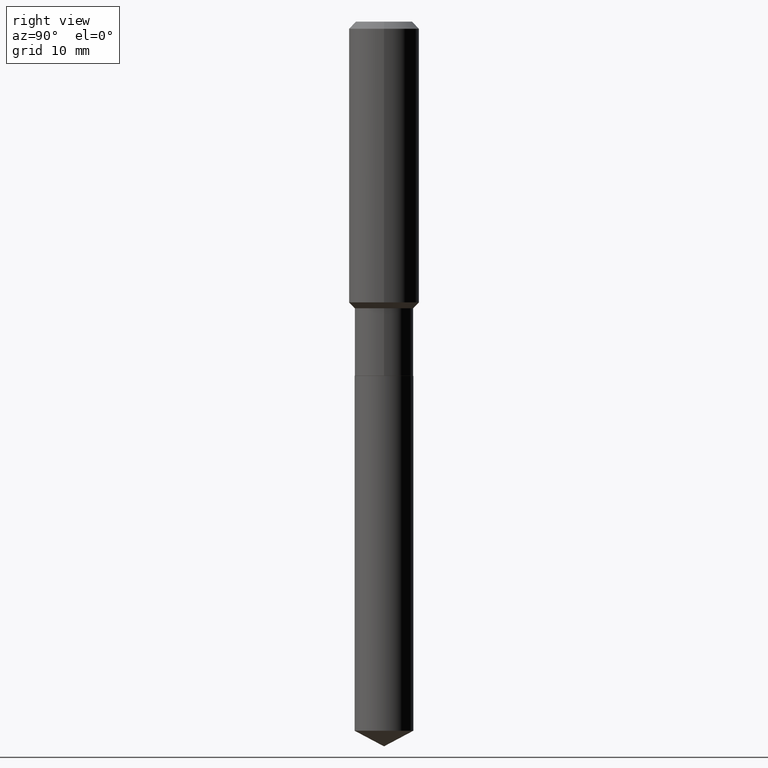
[diagram: clean part render]
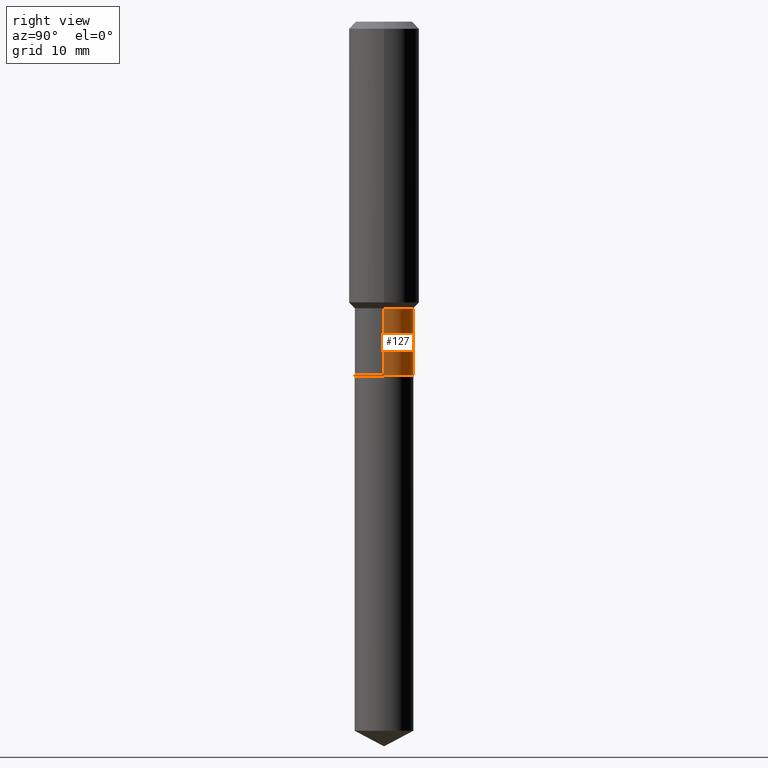
[diagram: same view with one face highlighted and labeled with its STEP entity id]
A machine part, right view. The second image highlights one B-rep face of the part: STEP entity #127.
In plain terms, the highlighted cylindrical surface (edge-blend (fillet) strip) has radius 4.1669 mm, axis along (-0, 0, 1).
Its self-contained STEP definition (entity closure, byte-faithful):
#13 = VERTEX_POINT ( 'NONE', #390 ) ;
#19 = VERTEX_POINT ( 'NONE', #200 ) ;
#26 = AXIS2_PLACEMENT_3D ( 'NONE', #393, #231, #37 ) ;
#31 = DIRECTION ( 'NONE',  ( 1.000000000000000000, -6.982962677686269077E-15, 0.000000000000000000 ) ) ;
#37 = DIRECTION ( 'NONE',  ( 1.000000000000000000, -6.982962677686266711E-15, 4.876176775795935232E-29 ) ) ;
#42 = EDGE_CURVE ( 'NONE', #46, #13, #408, .T. ) ;
#46 = VERTEX_POINT ( 'NONE', #120 ) ;
#77 = CIRCLE ( 'NONE', #205, 0.1640500000000000291 ) ;
#85 = CYLINDRICAL_SURFACE ( 'NONE', #26, 0.1640500000000000014 ) ;
#113 = ORIENTED_EDGE ( 'NONE', *, *, #234, .T. ) ;
#120 = CARTESIAN_POINT ( 'NONE',  ( 0.1640499999999999459, -6.745192798511067391E-15, -1.603799999999999670 ) ) ;
#127 = ADVANCED_FACE ( 'NONE', ( #434 ), #85, .T. ) ;
#134 = VECTOR ( 'NONE', #291, 39.37007874015748143 ) ;
#148 = VECTOR ( 'NONE', #417, 39.37007874015748143 ) ;
#173 = CARTESIAN_POINT ( 'NONE',  ( -0.1640500000000000014, 1.165645358014444365E-15, -8.069513015563172164E-30 ) ) ;
#188 = ORIENTED_EDGE ( 'NONE', *, *, #319, .F. ) ;
#200 = CARTESIAN_POINT ( 'NONE',  ( 0.1640500000000000291, -8.060782966987165334E-15, -1.980599999999999694 ) ) ;
#204 = ORIENTED_EDGE ( 'NONE', *, *, #413, .T. ) ;
#205 = AXIS2_PLACEMENT_3D ( 'NONE', #342, #485, #31 ) ;
#231 = DIRECTION ( 'NONE',  ( -2.445468806185136597E-29, 3.491481338843145583E-15, 1.000000000000000000 ) ) ;
#233 = EDGE_LOOP ( 'NONE', ( #204, #113, #399, #188 ) ) ;
#234 = EDGE_CURVE ( 'NONE', #389, #13, #288, .T. ) ;
#288 = LINE ( 'NONE', #173, #134 ) ;
#291 = DIRECTION ( 'NONE',  ( -2.445468806185136877E-29, 3.491481338843145188E-15, 1.000000000000000000 ) ) ;
#319 = EDGE_CURVE ( 'NONE', #19, #46, #453, .T. ) ;
#342 = CARTESIAN_POINT ( 'NONE',  ( 4.843495517530280568E-29, -6.915227939712732882E-15, -1.980599999999999694 ) ) ;
#344 = AXIS2_PLACEMENT_3D ( 'NONE', #422, #355, #384 ) ;
#355 = DIRECTION ( 'NONE',  ( -2.445468806185136597E-29, 3.491481338843145583E-15, 1.000000000000000000 ) ) ;
#384 = DIRECTION ( 'NONE',  ( 1.000000000000000000, -6.982962677686266711E-15, 0.000000000000000000 ) ) ;
#389 = VERTEX_POINT ( 'NONE', #415 ) ;
#390 = CARTESIAN_POINT ( 'NONE',  ( -0.1640499999999999459, -5.091787497460239743E-15, -1.603799999999999670 ) ) ;
#393 = CARTESIAN_POINT ( 'NONE',  ( 0.000000000000000000, 0.000000000000000000, 0.000000000000000000 ) ) ;
#399 = ORIENTED_EDGE ( 'NONE', *, *, #42, .F. ) ;
#408 = CIRCLE ( 'NONE', #344, 0.1640499999999999459 ) ;
#413 = EDGE_CURVE ( 'NONE', #19, #389, #77, .T. ) ;
#415 = CARTESIAN_POINT ( 'NONE',  ( -0.1640500000000000291, -5.091787497460239743E-15, -1.980599999999999694 ) ) ;
#417 = DIRECTION ( 'NONE',  ( -2.445468806185136877E-29, 3.491481338843145188E-15, 1.000000000000000000 ) ) ;
#422 = CARTESIAN_POINT ( 'NONE',  ( 3.922042871359721268E-29, -5.599637771236635728E-15, -1.603799999999999670 ) ) ;
#434 = FACE_OUTER_BOUND ( 'NONE', #233, .T. ) ;
#453 = LINE ( 'NONE', #481, #148 ) ;
#481 = CARTESIAN_POINT ( 'NONE',  ( 0.1640500000000000014, -1.145555027274432057E-15, 7.999368000693231542E-30 ) ) ;
#485 = DIRECTION ( 'NONE',  ( -2.445468806185136597E-29, 3.491481338843145583E-15, 1.000000000000000000 ) ) ;